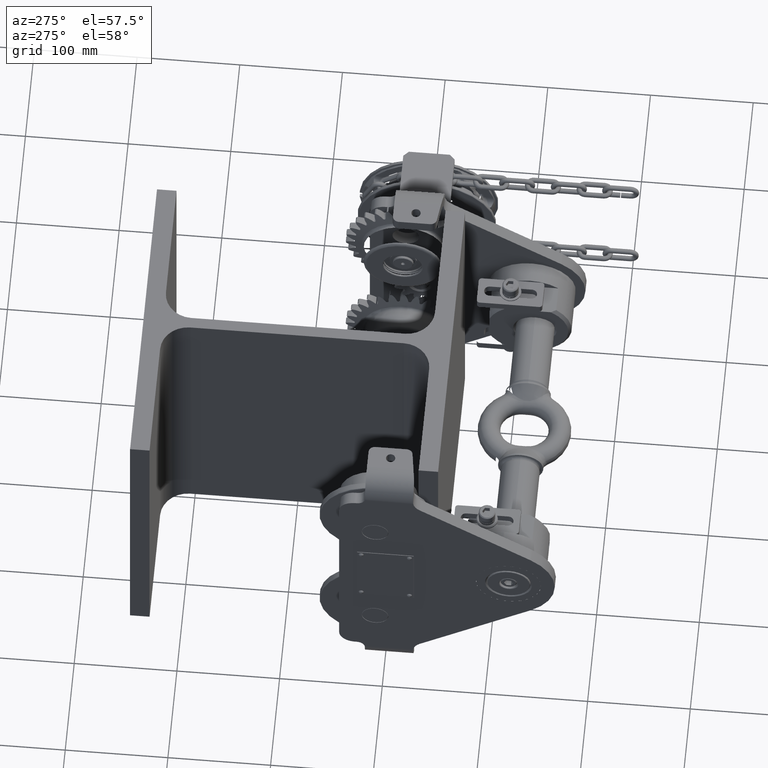
[diagram: clean part render]
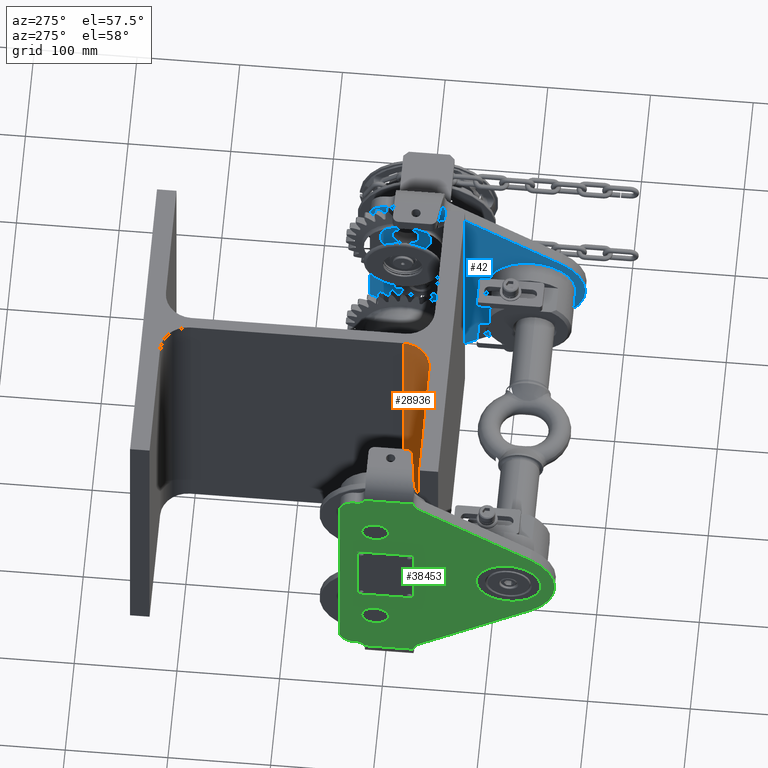
[diagram: same view with three faces highlighted in distinct colors, each labeled with its STEP entity id]
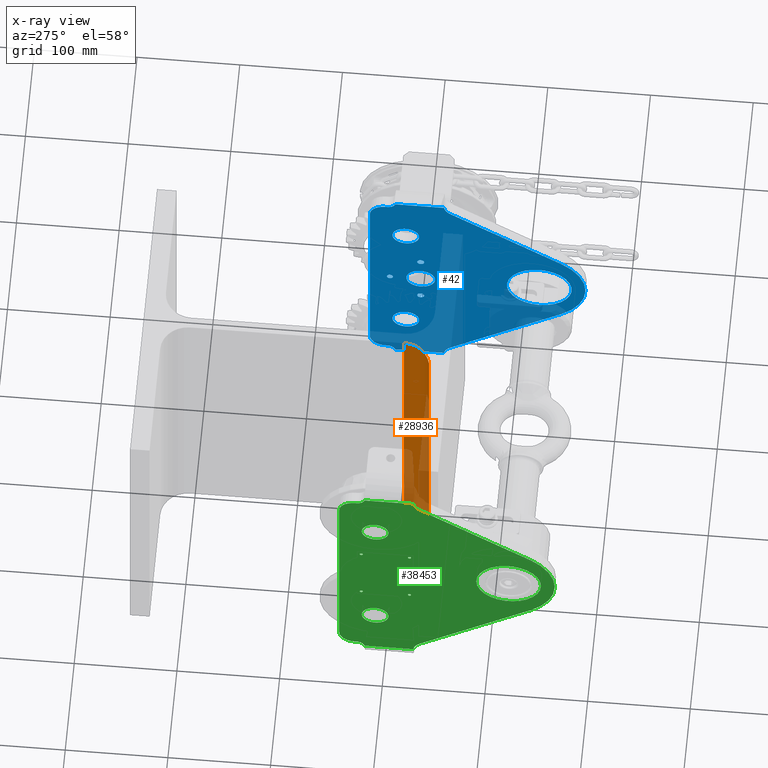
[diagram: x-ray of the same camera — body ghosted, the three highlighted faces saturated]
A machine part, auxiliary view with three faces highlighted in distinct colors.
The next image is the same camera in x-ray (body ghosted, the three faces saturated) — at least one of them is partly hidden behind the body in this view.
Their STEP definitions:

[orange] entity #28936 — the highlighted cylindrical surface (edge-blend (fillet) strip) has radius 27 mm, axis along (0, 0, 1).
#739 = DIRECTION ( 'NONE',  ( 0.0000000000000000000, 0.0000000000000000000, 1.000000000000000000 ) ) ;
#924 = CARTESIAN_POINT ( 'NONE',  ( -32.50000000000032700, -130.9999999999998000, 150.0000000000000000 ) ) ;
#1671 = DIRECTION ( 'NONE',  ( 1.000000000000000000, 0.0000000000000000000, 0.0000000000000000000 ) ) ;
#2458 = VERTEX_POINT ( 'NONE', #53831 ) ;
#4898 = CARTESIAN_POINT ( 'NONE',  ( -32.50000000000036900, -103.9999999999998200, -150.0000000000000000 ) ) ;
#5655 = CIRCLE ( 'NONE', #21361, 26.99999999999999600 ) ;
#7956 = VERTEX_POINT ( 'NONE', #924 ) ;
#13146 = DIRECTION ( 'NONE',  ( 1.000000000000000000, 0.0000000000000000000, 0.0000000000000000000 ) ) ;
#13888 = CARTESIAN_POINT ( 'NONE',  ( -32.50000000000036900, -103.9999999999998200, 150.0000000000000000 ) ) ;
#15463 = EDGE_CURVE ( 'NONE', #17059, #7956, #33084, .T. ) ;
#16266 = ORIENTED_EDGE ( 'NONE', *, *, #15463, .T. ) ;
#17059 = VERTEX_POINT ( 'NONE', #29821 ) ;
#17092 = EDGE_CURVE ( 'NONE', #31466, #2458, #30647, .T. ) ;
#17113 = CARTESIAN_POINT ( 'NONE',  ( -32.50000000000036900, -103.9999999999998200, -150.0000000000000000 ) ) ;
#20041 = AXIS2_PLACEMENT_3D ( 'NONE', #4898, #739, #1671 ) ;
#20381 = EDGE_CURVE ( 'NONE', #17059, #31466, #51820, .T. ) ;
#20429 = VECTOR ( 'NONE', #55833, 1000.000000000000000 ) ;
#21252 = ORIENTED_EDGE ( 'NONE', *, *, #20381, .F. ) ;
#21361 = AXIS2_PLACEMENT_3D ( 'NONE', #13888, #44228, #35911 ) ;
#23172 = AXIS2_PLACEMENT_3D ( 'NONE', #17113, #39144, #13146 ) ;
#24189 = ORIENTED_EDGE ( 'NONE', *, *, #46208, .T. ) ;
#28936 = ADVANCED_FACE ( 'NONE', ( #43342 ), #29117, .F. ) ;
#29117 = CYLINDRICAL_SURFACE ( 'NONE', #20041, 26.99999999999999600 ) ;
#29821 = CARTESIAN_POINT ( 'NONE',  ( -32.50000000000032700, -130.9999999999998000, -150.0000000000000000 ) ) ;
#30647 = LINE ( 'NONE', #33632, #20429 ) ;
#31466 = VERTEX_POINT ( 'NONE', #52041 ) ;
#33084 = LINE ( 'NONE', #51421, #47288 ) ;
#33632 = CARTESIAN_POINT ( 'NONE',  ( -5.500000000000373900, -103.9999999999998200, -150.0000000000000000 ) ) ;
#35911 = DIRECTION ( 'NONE',  ( 1.000000000000000000, 0.0000000000000000000, 0.0000000000000000000 ) ) ;
#36898 = ORIENTED_EDGE ( 'NONE', *, *, #17092, .F. ) ;
#39144 = DIRECTION ( 'NONE',  ( 0.0000000000000000000, 0.0000000000000000000, 1.000000000000000000 ) ) ;
#42812 = DIRECTION ( 'NONE',  ( 0.0000000000000000000, 0.0000000000000000000, 1.000000000000000000 ) ) ;
#43076 = EDGE_LOOP ( 'NONE', ( #24189, #36898, #21252, #16266 ) ) ;
#43342 = FACE_OUTER_BOUND ( 'NONE', #43076, .T. ) ;
#44228 = DIRECTION ( 'NONE',  ( 0.0000000000000000000, 0.0000000000000000000, 1.000000000000000000 ) ) ;
#46208 = EDGE_CURVE ( 'NONE', #7956, #2458, #5655, .T. ) ;
#47288 = VECTOR ( 'NONE', #42812, 1000.000000000000000 ) ;
#51421 = CARTESIAN_POINT ( 'NONE',  ( -32.50000000000032700, -130.9999999999998000, -150.0000000000000000 ) ) ;
#51820 = CIRCLE ( 'NONE', #23172, 26.99999999999999600 ) ;
#52041 = CARTESIAN_POINT ( 'NONE',  ( -5.500000000000373900, -103.9999999999998200, -150.0000000000000000 ) ) ;
#53831 = CARTESIAN_POINT ( 'NONE',  ( -5.500000000000373900, -103.9999999999998200, 150.0000000000000000 ) ) ;
#55833 = DIRECTION ( 'NONE',  ( 0.0000000000000000000, 0.0000000000000000000, 1.000000000000000000 ) ) ;

[blue] entity #42 — the highlighted planar face has unit normal (-1, 0, 0).
#42 = ADVANCED_FACE ( 'NONE', ( #11438, #1246, #31136, #4676, #46011, #44001, #51532, #12773 ), #7460, .T. ) ;
#85 = DIRECTION ( 'NONE',  ( 0.0000000000000000000, 0.0000000000000000000, 1.000000000000000000 ) ) ;
#361 = VERTEX_POINT ( 'NONE', #36037 ) ;
#622 = CARTESIAN_POINT ( 'NONE',  ( 165.0000000000005100, -105.5199999999999200, 14.00000000000002100 ) ) ;
#1098 = DIRECTION ( 'NONE',  ( 0.0000000000000000000, 0.0000000000000000000, 1.000000000000000000 ) ) ;
#1162 = VERTEX_POINT ( 'NONE', #2116 ) ;
#1246 = FACE_BOUND ( 'NONE', #42952, .T. ) ;
#1428 = DIRECTION ( 'NONE',  ( -1.000000000000000000, 7.520234006829985300E-017, 1.237788714659023200E-016 ) ) ;
#1590 = VECTOR ( 'NONE', #21750, 1000.000000000000000 ) ;
#1790 = VECTOR ( 'NONE', #14709, 1000.000000000000000 ) ;
#1958 = DIRECTION ( 'NONE',  ( 9.174201283909849900E-018, -0.8200253047337742200, 0.5723272661653303600 ) ) ;
#2043 = VERTEX_POINT ( 'NONE', #45473 ) ;
#2116 = CARTESIAN_POINT ( 'NONE',  ( 165.0000000000012200, -220.9999999999999100, 31.50000000000024200 ) ) ;
#2316 = CARTESIAN_POINT ( 'NONE',  ( 165.0000000000004800, -340.9435743119495900, 23.62152793321146400 ) ) ;
#2376 = AXIS2_PLACEMENT_3D ( 'NONE', #47441, #12909, #21806 ) ;
#2532 = CARTESIAN_POINT ( 'NONE',  ( 165.0000000000005100, -75.51999999999992500, -1.375993047711097100E-013 ) ) ;
#2695 = CARTESIAN_POINT ( 'NONE',  ( 165.0000000000012200, -210.9999999999999100, -2.126535289039365600E-013 ) ) ;
#2742 = CARTESIAN_POINT ( 'NONE',  ( 165.0000000000004800, -90.99999999999992900, 75.00000000000062500 ) ) ;
#3803 = AXIS2_PLACEMENT_3D ( 'NONE', #25598, #55830, #4542 ) ;
#4077 = EDGE_CURVE ( 'NONE', #17389, #47416, #36540, .T. ) ;
#4282 = ORIENTED_EDGE ( 'NONE', *, *, #55028, .T. ) ;
#4497 = ORIENTED_EDGE ( 'NONE', *, *, #28537, .F. ) ;
#4542 = DIRECTION ( 'NONE',  ( 0.0000000000000000000, 0.0000000000000000000, 1.000000000000000000 ) ) ;
#4676 = FACE_BOUND ( 'NONE', #14636, .T. ) ;
#4698 = VERTEX_POINT ( 'NONE', #29946 ) ;
#4856 = LINE ( 'NONE', #20708, #18992 ) ;
#4900 = EDGE_CURVE ( 'NONE', #29508, #50203, #21349, .T. ) ;
#4995 = ORIENTED_EDGE ( 'NONE', *, *, #40384, .F. ) ;
#5153 = LINE ( 'NONE', #5642, #1790 ) ;
#5467 = LINE ( 'NONE', #40689, #50301 ) ;
#5642 = CARTESIAN_POINT ( 'NONE',  ( 165.0000000000005100, -265.9999999999999400, 125.0000000000041100 ) ) ;
#6619 = DIRECTION ( 'NONE',  ( 0.0000000000000000000, 0.0000000000000000000, 1.000000000000000000 ) ) ;
#6978 = CARTESIAN_POINT ( 'NONE',  ( 165.0000000000005100, -72.99999999999982900, 133.0000000000014200 ) ) ;
#7123 = VERTEX_POINT ( 'NONE', #37444 ) ;
#7153 = EDGE_CURVE ( 'NONE', #46242, #34464, #4856, .T. ) ;
#7460 = PLANE ( 'NONE',  #39661 ) ;
#7472 = CIRCLE ( 'NONE', #26051, 14.00000000000016300 ) ;
#7500 = DIRECTION ( 'NONE',  ( 7.520234006829849700E-017, 1.000000000000000000, -1.033059776673966900E-031 ) ) ;
#7966 = EDGE_CURVE ( 'NONE', #56258, #56258, #7472, .T. ) ;
#8063 = CARTESIAN_POINT ( 'NONE',  ( 165.0000000000005100, -55.99999999999990100, 131.0000000000013900 ) ) ;
#8080 = CARTESIAN_POINT ( 'NONE',  ( 165.0000000000004800, -105.5199999999999200, -30.00000000000061800 ) ) ;
#8127 = CIRCLE ( 'NONE', #42220, 3.000000000000041300 ) ;
#8176 = CARTESIAN_POINT ( 'NONE',  ( 165.0000000000004800, -103.9999999999999100, -75.00000000000089500 ) ) ;
#8254 = CIRCLE ( 'NONE', #32037, 55.00000000000068200 ) ;
#8633 = VERTEX_POINT ( 'NONE', #21692 ) ;
#9189 = EDGE_CURVE ( 'NONE', #2043, #17973, #5153, .T. ) ;
#9200 = CARTESIAN_POINT ( 'NONE',  ( 165.0000000000004800, -72.99999999999982900, -125.0000000000016900 ) ) ;
#9258 = EDGE_CURVE ( 'NONE', #26634, #2043, #22710, .T. ) ;
#9650 = CARTESIAN_POINT ( 'NONE',  ( 165.0000000000006500, -127.9999999999998300, -155.0000000000016500 ) ) ;
#10165 = VERTEX_POINT ( 'NONE', #17447 ) ;
#11438 = FACE_BOUND ( 'NONE', #15910, .T. ) ;
#11961 = CARTESIAN_POINT ( 'NONE',  ( 165.0000000000004800, -105.5199999999999200, -26.60000000000058100 ) ) ;
#12094 = EDGE_CURVE ( 'NONE', #1162, #1162, #54151, .T. ) ;
#12156 = ORIENTED_EDGE ( 'NONE', *, *, #37319, .T. ) ;
#12387 = CARTESIAN_POINT ( 'NONE',  ( 165.0000000000005100, -265.9999999999998900, 131.0000000000013900 ) ) ;
#12773 = FACE_BOUND ( 'NONE', #45053, .T. ) ;
#12781 = CARTESIAN_POINT ( 'NONE',  ( 165.0000000000005100, -70.99999999999990100, 125.0000000000013900 ) ) ;
#12870 = CIRCLE ( 'NONE', #17445, 3.400000000000035000 ) ;
#12909 = DIRECTION ( 'NONE',  ( 1.000000000000000000, -7.520234006829985300E-017, -1.237788714659023200E-016 ) ) ;
#13631 = CARTESIAN_POINT ( 'NONE',  ( 165.0000000000004800, -265.9999999999998900, 131.0000000000013900 ) ) ;
#13804 = VECTOR ( 'NONE', #29870, 1000.000000000000000 ) ;
#13989 = VERTEX_POINT ( 'NONE', #41550 ) ;
#14365 = ORIENTED_EDGE ( 'NONE', *, *, #9258, .T. ) ;
#14450 = LINE ( 'NONE', #9650, #1590 ) ;
#14509 = DIRECTION ( 'NONE',  ( 1.000000000000000000, -7.520234006829985300E-017, -1.237788714659023200E-016 ) ) ;
#14636 = EDGE_LOOP ( 'NONE', ( #19478 ) ) ;
#14709 = DIRECTION ( 'NONE',  ( 7.520234006829678400E-017, 1.000000000000000000, -1.387778780781508800E-014 ) ) ;
#14893 = DIRECTION ( 'NONE',  ( 0.0000000000000000000, 1.850371707708572300E-015, 1.000000000000000000 ) ) ;
#15133 = ORIENTED_EDGE ( 'NONE', *, *, #24783, .F. ) ;
#15856 = DIRECTION ( 'NONE',  ( -7.520234006830021000E-017, -1.000000000000000000, -1.387778780781508800E-014 ) ) ;
#15910 = EDGE_LOOP ( 'NONE', ( #4995 ) ) ;
#16593 = LINE ( 'NONE', #42393, #54663 ) ;
#17389 = VERTEX_POINT ( 'NONE', #38661 ) ;
#17445 = AXIS2_PLACEMENT_3D ( 'NONE', #8080, #51364, #85 ) ;
#17447 = CARTESIAN_POINT ( 'NONE',  ( 165.0000000000004800, -55.99999999999990100, -110.0000000000016500 ) ) ;
#17973 = VERTEX_POINT ( 'NONE', #12781 ) ;
#18160 = DIRECTION ( 'NONE',  ( 1.000000000000000000, -7.520234006829985300E-017, -1.237788714659023200E-016 ) ) ;
#18259 = DIRECTION ( 'NONE',  ( 0.0000000000000000000, 0.0000000000000000000, 1.000000000000000000 ) ) ;
#18449 = CARTESIAN_POINT ( 'NONE',  ( 165.0000000000006500, -127.9999999999998300, -131.0000000000016500 ) ) ;
#18992 = VECTOR ( 'NONE', #7500, 1000.000000000000000 ) ;
#19231 = EDGE_CURVE ( 'NONE', #29581, #29508, #16593, .T. ) ;
#19478 = ORIENTED_EDGE ( 'NONE', *, *, #23754, .T. ) ;
#20365 = VERTEX_POINT ( 'NONE', #9200 ) ;
#20708 = CARTESIAN_POINT ( 'NONE',  ( 165.0000000000004500, -265.9999999999998900, -131.0000000000016800 ) ) ;
#21072 = ORIENTED_EDGE ( 'NONE', *, *, #44290, .F. ) ;
#21241 = EDGE_CURVE ( 'NONE', #8633, #50203, #5467, .T. ) ;
#21290 = DIRECTION ( 'NONE',  ( 0.0000000000000000000, 0.0000000000000000000, 1.000000000000000000 ) ) ;
#21349 = CIRCLE ( 'NONE', #36678, 15.00000000000017900 ) ;
#21692 = CARTESIAN_POINT ( 'NONE',  ( 165.0000000000006500, -127.9999999999998300, 131.0000000000013900 ) ) ;
#21750 = DIRECTION ( 'NONE',  ( 4.633115819864183400E-018, -1.074805461398712200E-031, 1.000000000000000000 ) ) ;
#21806 = DIRECTION ( 'NONE',  ( 0.0000000000000000000, 5.551115123125710900E-015, 1.000000000000000000 ) ) ;
#21956 = EDGE_LOOP ( 'NONE', ( #51724 ) ) ;
#22106 = EDGE_LOOP ( 'NONE', ( #15133 ) ) ;
#22202 = CARTESIAN_POINT ( 'NONE',  ( 165.0000000000005100, -55.99999999999990100, 110.0000000000014100 ) ) ;
#22602 = DIRECTION ( 'NONE',  ( 0.0000000000000000000, 0.0000000000000000000, 1.000000000000000000 ) ) ;
#22710 = CIRCLE ( 'NONE', #33416, 8.000000000000090600 ) ;
#23125 = CARTESIAN_POINT ( 'NONE',  ( 165.0000000000004800, -80.74596669241464000, -131.0000000000016800 ) ) ;
#23487 = EDGE_CURVE ( 'NONE', #20365, #34464, #43412, .T. ) ;
#23610 = VECTOR ( 'NONE', #1958, 999.9999999999998900 ) ;
#23742 = ORIENTED_EDGE ( 'NONE', *, *, #29355, .F. ) ;
#23754 = EDGE_CURVE ( 'NONE', #35086, #35086, #8127, .T. ) ;
#24202 = AXIS2_PLACEMENT_3D ( 'NONE', #2742, #41612, #50193 ) ;
#24634 = ORIENTED_EDGE ( 'NONE', *, *, #51549, .T. ) ;
#24739 = VECTOR ( 'NONE', #34890, 1000.000000000000000 ) ;
#24783 = EDGE_CURVE ( 'NONE', #13989, #13989, #29674, .T. ) ;
#25067 = EDGE_LOOP ( 'NONE', ( #23742 ) ) ;
#25388 = DIRECTION ( 'NONE',  ( -1.000000000000000000, 7.520234006829985300E-017, 4.633115819862199000E-018 ) ) ;
#25598 = CARTESIAN_POINT ( 'NONE',  ( 165.0000000000005100, -105.5199999999999200, 30.00000000000014600 ) ) ;
#25640 = EDGE_CURVE ( 'NONE', #8633, #26634, #32955, .T. ) ;
#26051 = AXIS2_PLACEMENT_3D ( 'NONE', #53693, #18160, #1098 ) ;
#26064 = DIRECTION ( 'NONE',  ( 1.000000000000000000, -7.520234006829985300E-017, -1.237788714659023200E-016 ) ) ;
#26634 = VERTEX_POINT ( 'NONE', #31080 ) ;
#26700 = EDGE_CURVE ( 'NONE', #7123, #46242, #14450, .T. ) ;
#26923 = ORIENTED_EDGE ( 'NONE', *, *, #7153, .F. ) ;
#26978 = AXIS2_PLACEMENT_3D ( 'NONE', #38204, #42741, #21290 ) ;
#27688 = AXIS2_PLACEMENT_3D ( 'NONE', #51429, #25388, #55804 ) ;
#28537 = EDGE_CURVE ( 'NONE', #54134, #54134, #12870, .T. ) ;
#28595 = ORIENTED_EDGE ( 'NONE', *, *, #25640, .T. ) ;
#28622 = CIRCLE ( 'NONE', #3803, 3.400000000000035000 ) ;
#29355 = EDGE_CURVE ( 'NONE', #36396, #36396, #37877, .T. ) ;
#29508 = VERTEX_POINT ( 'NONE', #44304 ) ;
#29581 = VERTEX_POINT ( 'NONE', #44495 ) ;
#29674 = CIRCLE ( 'NONE', #24202, 12.99999999999999800 ) ;
#29746 = AXIS2_PLACEMENT_3D ( 'NONE', #53060, #39700, #18259 ) ;
#29870 = DIRECTION ( 'NONE',  ( 1.237788714659011200E-016, -1.164405857736590600E-031, 1.000000000000000000 ) ) ;
#29946 = CARTESIAN_POINT ( 'NONE',  ( 165.0000000000004800, -70.99999999999990100, -125.0000000000016600 ) ) ;
#30593 = EDGE_CURVE ( 'NONE', #7123, #17389, #47897, .T. ) ;
#30670 = DIRECTION ( 'NONE',  ( 4.633115819864183400E-018, -1.074805461398712200E-031, 1.000000000000000000 ) ) ;
#31080 = CARTESIAN_POINT ( 'NONE',  ( 165.0000000000005100, -80.74596669241464000, 131.0000000000013900 ) ) ;
#31136 = FACE_BOUND ( 'NONE', #21956, .T. ) ;
#31973 = CARTESIAN_POINT ( 'NONE',  ( 165.0000000000004800, -70.99999999999990100, -110.0000000000016600 ) ) ;
#32037 = AXIS2_PLACEMENT_3D ( 'NONE', #2695, #41739, #50899 ) ;
#32060 = ORIENTED_EDGE ( 'NONE', *, *, #4077, .T. ) ;
#32274 = CIRCLE ( 'NONE', #29746, 15.00000000000019400 ) ;
#32588 = DIRECTION ( 'NONE',  ( 1.000000000000000000, -7.520234006829985300E-017, -1.237788714659023200E-016 ) ) ;
#32752 = ORIENTED_EDGE ( 'NONE', *, *, #19231, .T. ) ;
#32955 = LINE ( 'NONE', #13631, #24739 ) ;
#33416 = AXIS2_PLACEMENT_3D ( 'NONE', #6978, #32588, #6619 ) ;
#34464 = VERTEX_POINT ( 'NONE', #23125 ) ;
#34547 = VECTOR ( 'NONE', #15856, 1000.000000000000000 ) ;
#34890 = DIRECTION ( 'NONE',  ( 7.520234006829849700E-017, 1.000000000000000000, -1.033059776673966900E-031 ) ) ;
#35086 = VERTEX_POINT ( 'NONE', #41901 ) ;
#36037 = CARTESIAN_POINT ( 'NONE',  ( 165.0000000000005100, -105.5199999999999200, 33.40000000000017600 ) ) ;
#36164 = CARTESIAN_POINT ( 'NONE',  ( 165.0000000000005100, -142.9999999999998600, 132.8230403019135200 ) ) ;
#36396 = VERTEX_POINT ( 'NONE', #8176 ) ;
#36540 = LINE ( 'NONE', #2316, #23610 ) ;
#36678 = AXIS2_PLACEMENT_3D ( 'NONE', #36164, #14509, #14893 ) ;
#36701 = DIRECTION ( 'NONE',  ( 0.0000000000000000000, 0.0000000000000000000, 1.000000000000000000 ) ) ;
#37319 = EDGE_CURVE ( 'NONE', #4698, #20365, #46039, .T. ) ;
#37444 = CARTESIAN_POINT ( 'NONE',  ( 165.0000000000006500, -127.9999999999998900, -132.8230403019138400 ) ) ;
#37681 = DIRECTION ( 'NONE',  ( 1.325098449463085100E-016, 0.8200253047337737700, 0.5723272661653309200 ) ) ;
#37877 = CIRCLE ( 'NONE', #27688, 12.99999999999999800 ) ;
#38204 = CARTESIAN_POINT ( 'NONE',  ( 165.0000000000012200, -220.9999999999999100, -1.408519666696450500E-013 ) ) ;
#38661 = CARTESIAN_POINT ( 'NONE',  ( 165.0000000000004800, -134.4150910075199800, -120.5226607309071800 ) ) ;
#38892 = ORIENTED_EDGE ( 'NONE', *, *, #21241, .F. ) ;
#39661 = AXIS2_PLACEMENT_3D ( 'NONE', #12387, #42732, #47093 ) ;
#39700 = DIRECTION ( 'NONE',  ( -1.000000000000000000, 7.520234006829985300E-017, 1.237788714659023200E-016 ) ) ;
#40380 = AXIS2_PLACEMENT_3D ( 'NONE', #48282, #26064, #22602 ) ;
#40384 = EDGE_CURVE ( 'NONE', #361, #361, #28622, .T. ) ;
#40689 = CARTESIAN_POINT ( 'NONE',  ( 165.0000000000006500, -127.9999999999998300, -155.0000000000016500 ) ) ;
#41376 = ORIENTED_EDGE ( 'NONE', *, *, #43439, .T. ) ;
#41550 = CARTESIAN_POINT ( 'NONE',  ( 165.0000000000004800, -103.9999999999999300, 75.00000000000062500 ) ) ;
#41612 = DIRECTION ( 'NONE',  ( -1.000000000000000000, 7.520234006829985300E-017, 4.633115819862199000E-018 ) ) ;
#41739 = DIRECTION ( 'NONE',  ( -1.000000000000000000, 7.520234006829985300E-017, 1.237788714659023200E-016 ) ) ;
#41758 = DIRECTION ( 'NONE',  ( 0.0000000000000000000, 0.0000000000000000000, 1.000000000000000000 ) ) ;
#41901 = CARTESIAN_POINT ( 'NONE',  ( 165.0000000000005100, -75.51999999999992500, 2.999999999999903600 ) ) ;
#42220 = AXIS2_PLACEMENT_3D ( 'NONE', #2532, #49979, #41758 ) ;
#42393 = CARTESIAN_POINT ( 'NONE',  ( 165.0000000000012200, -217.9809900106456300, 62.19879896101364400 ) ) ;
#42732 = DIRECTION ( 'NONE',  ( -1.000000000000000000, 7.520234006829986500E-017, 1.237788714659011200E-016 ) ) ;
#42741 = DIRECTION ( 'NONE',  ( 1.000000000000000000, -7.520234006829985300E-017, -1.237788714659023200E-016 ) ) ;
#42870 = ORIENTED_EDGE ( 'NONE', *, *, #12094, .T. ) ;
#42952 = EDGE_LOOP ( 'NONE', ( #4497 ) ) ;
#43412 = CIRCLE ( 'NONE', #40380, 8.000000000000090600 ) ;
#43439 = EDGE_CURVE ( 'NONE', #17973, #52031, #32274, .T. ) ;
#44001 = FACE_BOUND ( 'NONE', #22106, .T. ) ;
#44283 = ORIENTED_EDGE ( 'NONE', *, *, #26700, .F. ) ;
#44290 = EDGE_CURVE ( 'NONE', #10165, #52031, #45682, .T. ) ;
#44304 = CARTESIAN_POINT ( 'NONE',  ( 165.0000000000005100, -134.4150910075199800, 120.5226607309068500 ) ) ;
#44495 = CARTESIAN_POINT ( 'NONE',  ( 165.0000000000012500, -242.4779996390927300, 45.10139176035798400 ) ) ;
#45053 = EDGE_LOOP ( 'NONE', ( #42870 ) ) ;
#45473 = CARTESIAN_POINT ( 'NONE',  ( 165.0000000000005100, -72.99999999999982900, 125.0000000000014500 ) ) ;
#45682 = LINE ( 'NONE', #8063, #13804 ) ;
#45888 = ORIENTED_EDGE ( 'NONE', *, *, #4900, .T. ) ;
#46011 = FACE_OUTER_BOUND ( 'NONE', #47743, .T. ) ;
#46039 = LINE ( 'NONE', #55565, #34547 ) ;
#46242 = VERTEX_POINT ( 'NONE', #18449 ) ;
#47093 = DIRECTION ( 'NONE',  ( 1.237788714659011200E-016, -1.164405857736590600E-031, 1.000000000000000000 ) ) ;
#47416 = VERTEX_POINT ( 'NONE', #55954 ) ;
#47441 = CARTESIAN_POINT ( 'NONE',  ( 165.0000000000004800, -142.9999999999999100, -132.8230403019138400 ) ) ;
#47743 = EDGE_LOOP ( 'NONE', ( #26923, #44283, #52229, #32060, #4282, #32752, #45888, #38892, #28595, #14365, #53792, #41376, #21072, #24634, #12156, #47888 ) ) ;
#47888 = ORIENTED_EDGE ( 'NONE', *, *, #23487, .T. ) ;
#47897 = CIRCLE ( 'NONE', #2376, 15.00000000000019400 ) ;
#48282 = CARTESIAN_POINT ( 'NONE',  ( 165.0000000000004800, -72.99999999999982900, -133.0000000000017100 ) ) ;
#49209 = CARTESIAN_POINT ( 'NONE',  ( 165.0000000000006500, -127.9999999999998300, 132.8230403019135200 ) ) ;
#49979 = DIRECTION ( 'NONE',  ( 1.000000000000000000, -7.520234006829985300E-017, -1.237788714659023200E-016 ) ) ;
#50193 = DIRECTION ( 'NONE',  ( 0.0000000000000000000, -1.000000000000000000, 0.0000000000000000000 ) ) ;
#50203 = VERTEX_POINT ( 'NONE', #49209 ) ;
#50301 = VECTOR ( 'NONE', #30670, 1000.000000000000000 ) ;
#50899 = DIRECTION ( 'NONE',  ( 0.0000000000000000000, 0.0000000000000000000, 1.000000000000000000 ) ) ;
#51364 = DIRECTION ( 'NONE',  ( -1.000000000000000000, 7.520234006829985300E-017, 1.237788714659023200E-016 ) ) ;
#51429 = CARTESIAN_POINT ( 'NONE',  ( 165.0000000000004800, -90.99999999999991500, -75.00000000000089500 ) ) ;
#51532 = FACE_BOUND ( 'NONE', #25067, .T. ) ;
#51549 = EDGE_CURVE ( 'NONE', #10165, #4698, #54536, .T. ) ;
#51724 = ORIENTED_EDGE ( 'NONE', *, *, #7966, .T. ) ;
#52031 = VERTEX_POINT ( 'NONE', #22202 ) ;
#52229 = ORIENTED_EDGE ( 'NONE', *, *, #30593, .T. ) ;
#52604 = AXIS2_PLACEMENT_3D ( 'NONE', #31973, #1428, #36701 ) ;
#53060 = CARTESIAN_POINT ( 'NONE',  ( 165.0000000000005100, -70.99999999999990100, 110.0000000000013900 ) ) ;
#53693 = CARTESIAN_POINT ( 'NONE',  ( 165.0000000000005100, -105.5199999999999200, -1.415433567511412300E-013 ) ) ;
#53792 = ORIENTED_EDGE ( 'NONE', *, *, #9189, .T. ) ;
#54134 = VERTEX_POINT ( 'NONE', #11961 ) ;
#54151 = CIRCLE ( 'NONE', #26978, 31.50000000000038000 ) ;
#54536 = CIRCLE ( 'NONE', #52604, 15.00000000000017900 ) ;
#54663 = VECTOR ( 'NONE', #37681, 1000.000000000000000 ) ;
#55028 = EDGE_CURVE ( 'NONE', #47416, #29581, #8254, .T. ) ;
#55565 = CARTESIAN_POINT ( 'NONE',  ( 165.0000000000004500, -265.9999999999963600, -125.0000000000043900 ) ) ;
#55804 = DIRECTION ( 'NONE',  ( 0.0000000000000000000, -1.000000000000000000, 0.0000000000000000000 ) ) ;
#55830 = DIRECTION ( 'NONE',  ( -1.000000000000000000, 7.520234006829985300E-017, 1.237788714659023200E-016 ) ) ;
#55954 = CARTESIAN_POINT ( 'NONE',  ( 165.0000000000004800, -242.4779996390927300, -45.10139176035840300 ) ) ;
#56258 = VERTEX_POINT ( 'NONE', #622 ) ;

[green] entity #38453 — the highlighted planar face has unit normal (-1, 0, 0).
#992 = DIRECTION ( 'NONE',  ( 0.0000000000000000000, 1.000000000000000000, 0.0000000000000000000 ) ) ;
#1118 = EDGE_CURVE ( 'NONE', #45873, #5440, #43148, .T. ) ;
#1568 = CIRCLE ( 'NONE', #43819, 54.99999999999999300 ) ;
#1819 = VECTOR ( 'NONE', #51646, 1000.000000000000000 ) ;
#2016 = CIRCLE ( 'NONE', #44140, 7.999999999999979600 ) ;
#2726 = ORIENTED_EDGE ( 'NONE', *, *, #13810, .T. ) ;
#2949 = VERTEX_POINT ( 'NONE', #20490 ) ;
#3018 = EDGE_CURVE ( 'NONE', #4596, #4596, #8319, .T. ) ;
#3387 = DIRECTION ( 'NONE',  ( 0.0000000000000000000, 1.000000000000000000, 0.0000000000000000000 ) ) ;
#3701 = EDGE_CURVE ( 'NONE', #7353, #7353, #52996, .T. ) ;
#3975 = DIRECTION ( 'NONE',  ( -1.000000000000000000, 5.141320619052711900E-017, 5.173860848184563200E-017 ) ) ;
#4596 = VERTEX_POINT ( 'NONE', #53212 ) ;
#4760 = AXIS2_PLACEMENT_3D ( 'NONE', #9401, #39708, #17511 ) ;
#4776 = CARTESIAN_POINT ( 'NONE',  ( -177.0000000000000000, -128.1111946732583800, -131.0000000000019900 ) ) ;
#4971 = DIRECTION ( 'NONE',  ( 0.0000000000000000000, 1.000000000000000000, 0.0000000000000000000 ) ) ;
#5257 = VERTEX_POINT ( 'NONE', #36639 ) ;
#5440 = VERTEX_POINT ( 'NONE', #10133 ) ;
#5709 = LINE ( 'NONE', #45958, #26717 ) ;
#5776 = ORIENTED_EDGE ( 'NONE', *, *, #44630, .T. ) ;
#5826 = FACE_BOUND ( 'NONE', #35848, .T. ) ;
#6457 = EDGE_CURVE ( 'NONE', #5440, #8659, #21203, .T. ) ;
#6579 = DIRECTION ( 'NONE',  ( -1.000000000000000000, 5.141320619052711900E-017, 5.173860848184563200E-017 ) ) ;
#6644 = CARTESIAN_POINT ( 'NONE',  ( -177.0000000000000000, -134.4150910075199800, -120.5226607309074600 ) ) ;
#6884 = CARTESIAN_POINT ( 'NONE',  ( -177.0000000000000000, -75.99999999999994300, -33.50000000000037700 ) ) ;
#7256 = CARTESIAN_POINT ( 'NONE',  ( -177.0000000000000000, -72.99999999999984400, -125.0000000000020600 ) ) ;
#7330 = AXIS2_PLACEMENT_3D ( 'NONE', #15798, #41608, #28540 ) ;
#7345 = EDGE_LOOP ( 'NONE', ( #49000 ) ) ;
#7353 = VERTEX_POINT ( 'NONE', #22934 ) ;
#7659 = LINE ( 'NONE', #49394, #53141 ) ;
#8128 = CIRCLE ( 'NONE', #51933, 1.499999999999987600 ) ;
#8319 = CIRCLE ( 'NONE', #8965, 31.50000000000000000 ) ;
#8659 = VERTEX_POINT ( 'NONE', #30837 ) ;
#8805 = DIRECTION ( 'NONE',  ( 1.000000000000000000, -5.141320619052711900E-017, -5.173860848184563200E-017 ) ) ;
#8965 = AXIS2_PLACEMENT_3D ( 'NONE', #21799, #16873, #56228 ) ;
#8977 = VECTOR ( 'NONE', #54923, 1000.000000000000000 ) ;
#9356 = DIRECTION ( 'NONE',  ( 0.0000000000000000000, -1.000000000000000000, 0.0000000000000000000 ) ) ;
#9365 = AXIS2_PLACEMENT_3D ( 'NONE', #41680, #11914, #3387 ) ;
#9401 = CARTESIAN_POINT ( 'NONE',  ( -177.0000000000000000, -77.49999999999992900, -33.50000000000037700 ) ) ;
#9713 = CARTESIAN_POINT ( 'NONE',  ( -177.0000000000000000, -55.99999999999990100, 110.0000000000017300 ) ) ;
#10133 = CARTESIAN_POINT ( 'NONE',  ( -177.0000000000000000, -134.4150910075199800, 120.5226607309072300 ) ) ;
#10172 = DIRECTION ( 'NONE',  ( 0.0000000000000000000, 1.000000000000000000, 0.0000000000000000000 ) ) ;
#11328 = VERTEX_POINT ( 'NONE', #17830 ) ;
#11508 = DIRECTION ( 'NONE',  ( 0.0000000000000000000, 1.000000000000000000, 0.0000000000000000000 ) ) ;
#11901 = VERTEX_POINT ( 'NONE', #31669 ) ;
#11914 = DIRECTION ( 'NONE',  ( -1.000000000000000000, 5.141320619052711900E-017, 5.173860848184563200E-017 ) ) ;
#12193 = CARTESIAN_POINT ( 'NONE',  ( -177.0000000000000000, -210.9999999999999100, -6.895071741197847000E-014 ) ) ;
#12678 = CARTESIAN_POINT ( 'NONE',  ( -177.0000000000009100, -265.9999999999998900, -131.0000000000019900 ) ) ;
#12719 = ORIENTED_EDGE ( 'NONE', *, *, #28678, .F. ) ;
#12921 = EDGE_CURVE ( 'NONE', #33608, #18323, #48520, .T. ) ;
#13810 = EDGE_CURVE ( 'NONE', #15598, #45873, #1568, .T. ) ;
#13912 = VERTEX_POINT ( 'NONE', #4776 ) ;
#13955 = FACE_BOUND ( 'NONE', #36679, .T. ) ;
#14002 = ORIENTED_EDGE ( 'NONE', *, *, #55041, .T. ) ;
#14048 = DIRECTION ( 'NONE',  ( 1.000000000000000000, -5.141320619052711900E-017, -5.173860848184563200E-017 ) ) ;
#14991 = ORIENTED_EDGE ( 'NONE', *, *, #42625, .T. ) ;
#15411 = CIRCLE ( 'NONE', #50856, 14.99999999999998600 ) ;
#15598 = VERTEX_POINT ( 'NONE', #48533 ) ;
#15798 = CARTESIAN_POINT ( 'NONE',  ( -177.0000000000000000, -265.9999999999998900, 131.0000000000017100 ) ) ;
#15847 = CARTESIAN_POINT ( 'NONE',  ( -177.0000000000000000, -142.9999999999999100, 132.8230403019138900 ) ) ;
#15915 = ORIENTED_EDGE ( 'NONE', *, *, #35737, .T. ) ;
#16077 = DIRECTION ( 'NONE',  ( 1.000000000000000000, -5.141320619052711900E-017, -5.173860848184563200E-017 ) ) ;
#16267 = CARTESIAN_POINT ( 'NONE',  ( -177.0000000000009100, -142.9999999999998600, -132.8230403019141500 ) ) ;
#16873 = DIRECTION ( 'NONE',  ( -1.000000000000000000, 5.141320619052711900E-017, 5.173860848184563200E-017 ) ) ;
#17318 = VERTEX_POINT ( 'NONE', #17602 ) ;
#17511 = DIRECTION ( 'NONE',  ( 0.0000000000000000000, 1.000000000000000000, 0.0000000000000000000 ) ) ;
#17602 = CARTESIAN_POINT ( 'NONE',  ( -177.0000000000000000, -122.9999999999999400, 33.50000000000055400 ) ) ;
#17830 = CARTESIAN_POINT ( 'NONE',  ( -177.0000000000000000, -70.99999999999990100, -125.0000000000019800 ) ) ;
#18323 = VERTEX_POINT ( 'NONE', #9713 ) ;
#18398 = ORIENTED_EDGE ( 'NONE', *, *, #41069, .T. ) ;
#18486 = CARTESIAN_POINT ( 'NONE',  ( -177.0000000000000000, -80.74596669241465500, -131.0000000000019900 ) ) ;
#18667 = CARTESIAN_POINT ( 'NONE',  ( -177.0000000000000000, -242.4779996390927300, 45.10139176035843900 ) ) ;
#18744 = EDGE_CURVE ( 'NONE', #13912, #34605, #37885, .T. ) ;
#18791 = EDGE_LOOP ( 'NONE', ( #19272 ) ) ;
#19110 = CIRCLE ( 'NONE', #46306, 12.99999999999999800 ) ;
#19272 = ORIENTED_EDGE ( 'NONE', *, *, #38871, .F. ) ;
#19545 = ORIENTED_EDGE ( 'NONE', *, *, #3018, .F. ) ;
#19565 = EDGE_CURVE ( 'NONE', #5257, #5257, #34214, .T. ) ;
#19653 = DIRECTION ( 'NONE',  ( 1.000000000000000000, -5.141320619052711900E-017, -5.173860848184563200E-017 ) ) ;
#20255 = ORIENTED_EDGE ( 'NONE', *, *, #36241, .F. ) ;
#20490 = CARTESIAN_POINT ( 'NONE',  ( -177.0000000000000000, -80.74596669241462600, 131.0000000000017100 ) ) ;
#20826 = DIRECTION ( 'NONE',  ( 5.141320619052708200E-017, 1.000000000000000000, 1.939585182381060700E-034 ) ) ;
#21203 = CIRCLE ( 'NONE', #46986, 15.00000000000001400 ) ;
#21210 = CIRCLE ( 'NONE', #24143, 7.999999999999979600 ) ;
#21590 = CARTESIAN_POINT ( 'NONE',  ( -177.0000000000000000, -134.4150910075199800, 120.5226607309072300 ) ) ;
#21607 = ORIENTED_EDGE ( 'NONE', *, *, #12921, .T. ) ;
#21663 = ORIENTED_EDGE ( 'NONE', *, *, #45937, .T. ) ;
#21784 = VERTEX_POINT ( 'NONE', #48811 ) ;
#21799 = CARTESIAN_POINT ( 'NONE',  ( -177.0000000000000000, -220.9999999999999100, -1.407522796462694700E-013 ) ) ;
#22098 = VERTEX_POINT ( 'NONE', #6884 ) ;
#22934 = CARTESIAN_POINT ( 'NONE',  ( -177.0000000000000000, -122.9999999999999400, -33.50000000000037700 ) ) ;
#22994 = PLANE ( 'NONE',  #7330 ) ;
#23003 = VECTOR ( 'NONE', #38430, 1000.000000000000000 ) ;
#23070 = EDGE_LOOP ( 'NONE', ( #14002, #21607, #52083, #21663, #31647, #18398, #36298, #14991, #5776, #2726, #35960, #34688, #39124, #15915 ) ) ;
#23602 = VECTOR ( 'NONE', #20826, 1000.000000000000000 ) ;
#23627 = ORIENTED_EDGE ( 'NONE', *, *, #3701, .F. ) ;
#24143 = AXIS2_PLACEMENT_3D ( 'NONE', #48825, #14048, #992 ) ;
#25154 = AXIS2_PLACEMENT_3D ( 'NONE', #54115, #45321, #54296 ) ;
#25335 = CARTESIAN_POINT ( 'NONE',  ( -177.0000000000000000, -265.9999999999998900, 131.0000000000017100 ) ) ;
#25782 = CARTESIAN_POINT ( 'NONE',  ( -177.0000000000000000, -77.99999999999994300, -75.00000000000106600 ) ) ;
#26288 = EDGE_LOOP ( 'NONE', ( #20255 ) ) ;
#26594 = CARTESIAN_POINT ( 'NONE',  ( -177.0000000000000000, -124.4999999999999300, 33.50000000000055400 ) ) ;
#26717 = VECTOR ( 'NONE', #36531, 1000.000000000000000 ) ;
#27761 = DIRECTION ( 'NONE',  ( -1.000000000000000000, 5.141320619052711900E-017, 5.173860848184563200E-017 ) ) ;
#28540 = DIRECTION ( 'NONE',  ( 5.141320619052708200E-017, 1.000000000000000000, 1.939585182381060700E-034 ) ) ;
#28678 = EDGE_CURVE ( 'NONE', #22098, #22098, #29174, .T. ) ;
#29174 = CIRCLE ( 'NONE', #4760, 1.499999999999987600 ) ;
#30261 = FACE_BOUND ( 'NONE', #26288, .T. ) ;
#30742 = ORIENTED_EDGE ( 'NONE', *, *, #19565, .F. ) ;
#30837 = CARTESIAN_POINT ( 'NONE',  ( -177.0000000000000000, -128.1111946732584400, 131.0000000000017100 ) ) ;
#31647 = ORIENTED_EDGE ( 'NONE', *, *, #32525, .T. ) ;
#31669 = CARTESIAN_POINT ( 'NONE',  ( -177.0000000000000000, -75.99999999999994300, 33.50000000000055400 ) ) ;
#31743 = DIRECTION ( 'NONE',  ( 0.0000000000000000000, -1.000000000000000000, 0.0000000000000000000 ) ) ;
#31798 = AXIS2_PLACEMENT_3D ( 'NONE', #44611, #27761, #31743 ) ;
#32525 = EDGE_CURVE ( 'NONE', #11328, #36121, #5709, .T. ) ;
#32542 = CARTESIAN_POINT ( 'NONE',  ( -177.0000000000000000, -77.49999999999992900, 33.50000000000055400 ) ) ;
#32824 = AXIS2_PLACEMENT_3D ( 'NONE', #26594, #44568, #4971 ) ;
#33073 = EDGE_LOOP ( 'NONE', ( #30742 ) ) ;
#33260 = CARTESIAN_POINT ( 'NONE',  ( -177.0000000000000000, -70.99999999999990100, 125.0000000000017200 ) ) ;
#33608 = VERTEX_POINT ( 'NONE', #48163 ) ;
#33926 = LINE ( 'NONE', #46324, #49549 ) ;
#34057 = LINE ( 'NONE', #33260, #8977 ) ;
#34164 = DIRECTION ( 'NONE',  ( 0.0000000000000000000, 1.000000000000000000, 0.0000000000000000000 ) ) ;
#34214 = CIRCLE ( 'NONE', #25154, 12.99999999999999800 ) ;
#34355 = FACE_BOUND ( 'NONE', #47228, .T. ) ;
#34605 = VERTEX_POINT ( 'NONE', #18486 ) ;
#34688 = ORIENTED_EDGE ( 'NONE', *, *, #6457, .T. ) ;
#34773 = CARTESIAN_POINT ( 'NONE',  ( -177.0000000000000000, -72.99999999999984400, -133.0000000000020500 ) ) ;
#35737 = EDGE_CURVE ( 'NONE', #2949, #47281, #21210, .T. ) ;
#35848 = EDGE_LOOP ( 'NONE', ( #12719 ) ) ;
#35960 = ORIENTED_EDGE ( 'NONE', *, *, #1118, .T. ) ;
#36121 = VERTEX_POINT ( 'NONE', #7256 ) ;
#36241 = EDGE_CURVE ( 'NONE', #41102, #41102, #19110, .T. ) ;
#36298 = ORIENTED_EDGE ( 'NONE', *, *, #18744, .F. ) ;
#36531 = DIRECTION ( 'NONE',  ( -5.141320619052780300E-017, -1.000000000000000000, -1.387778780781512600E-014 ) ) ;
#36639 = CARTESIAN_POINT ( 'NONE',  ( -177.0000000000000000, -77.99999999999991500, 75.00000000000078200 ) ) ;
#36679 = EDGE_LOOP ( 'NONE', ( #19545 ) ) ;
#37485 = EDGE_CURVE ( 'NONE', #8659, #2949, #47485, .T. ) ;
#37629 = CARTESIAN_POINT ( 'NONE',  ( -177.0000000000000000, -70.99999999999990100, -110.0000000000020000 ) ) ;
#37712 = FACE_BOUND ( 'NONE', #18791, .T. ) ;
#37885 = LINE ( 'NONE', #12678, #23602 ) ;
#38430 = DIRECTION ( 'NONE',  ( 5.141320619052708200E-017, 1.000000000000000000, 1.939585182381060700E-034 ) ) ;
#38453 = ADVANCED_FACE ( 'NONE', ( #5826, #47209, #37712, #34355, #13955, #30261, #52010, #50644 ), #22994, .T. ) ;
#38871 = EDGE_CURVE ( 'NONE', #17318, #17318, #54647, .T. ) ;
#39124 = ORIENTED_EDGE ( 'NONE', *, *, #37485, .T. ) ;
#39708 = DIRECTION ( 'NONE',  ( -1.000000000000000000, 5.141320619052711900E-017, 5.173860848184563200E-017 ) ) ;
#40929 = EDGE_CURVE ( 'NONE', #21784, #18323, #33926, .T. ) ;
#41069 = EDGE_CURVE ( 'NONE', #36121, #34605, #2016, .T. ) ;
#41102 = VERTEX_POINT ( 'NONE', #25782 ) ;
#41413 = DIRECTION ( 'NONE',  ( -1.000000000000000000, 5.141320619052711900E-017, 5.173860848184563200E-017 ) ) ;
#41608 = DIRECTION ( 'NONE',  ( -1.000000000000000000, 5.141320619052708200E-017, 5.173860848184563200E-017 ) ) ;
#41680 = CARTESIAN_POINT ( 'NONE',  ( -177.0000000000000000, -124.4999999999999300, -33.50000000000037700 ) ) ;
#42480 = CARTESIAN_POINT ( 'NONE',  ( -177.0000000000000000, -90.99999999999994300, -75.00000000000106600 ) ) ;
#42625 = EDGE_CURVE ( 'NONE', #13912, #55375, #15411, .T. ) ;
#42706 = DIRECTION ( 'NONE',  ( -1.000000000000000000, 5.141320619052711900E-017, 5.173860848184563200E-017 ) ) ;
#43148 = LINE ( 'NONE', #21590, #1819 ) ;
#43464 = DIRECTION ( 'NONE',  ( 0.0000000000000000000, 1.000000000000000000, 0.0000000000000000000 ) ) ;
#43819 = AXIS2_PLACEMENT_3D ( 'NONE', #12193, #42706, #9356 ) ;
#44140 = AXIS2_PLACEMENT_3D ( 'NONE', #34773, #8805, #43464 ) ;
#44568 = DIRECTION ( 'NONE',  ( -1.000000000000000000, 5.141320619052711900E-017, 5.173860848184563200E-017 ) ) ;
#44611 = CARTESIAN_POINT ( 'NONE',  ( -177.0000000000000000, -70.99999999999990100, 110.0000000000017200 ) ) ;
#44630 = EDGE_CURVE ( 'NONE', #55375, #15598, #7659, .T. ) ;
#45321 = DIRECTION ( 'NONE',  ( -1.000000000000000000, 5.141320619052711900E-017, 5.173860848184563200E-017 ) ) ;
#45762 = EDGE_CURVE ( 'NONE', #11901, #11901, #8128, .T. ) ;
#45873 = VERTEX_POINT ( 'NONE', #18667 ) ;
#45937 = EDGE_CURVE ( 'NONE', #21784, #11328, #56342, .T. ) ;
#45958 = CARTESIAN_POINT ( 'NONE',  ( -177.0000000000000000, -72.99999999999984400, -125.0000000000020300 ) ) ;
#46306 = AXIS2_PLACEMENT_3D ( 'NONE', #42480, #3975, #34164 ) ;
#46324 = CARTESIAN_POINT ( 'NONE',  ( -177.0000000000000000, -55.99999999999990100, 131.0000000000017100 ) ) ;
#46601 = DIRECTION ( 'NONE',  ( 0.0000000000000000000, 1.000000000000000000, 0.0000000000000000000 ) ) ;
#46986 = AXIS2_PLACEMENT_3D ( 'NONE', #15847, #19653, #11508 ) ;
#47084 = DIRECTION ( 'NONE',  ( 5.173860848184563200E-017, -2.854006264126188900E-033, 1.000000000000000000 ) ) ;
#47209 = FACE_BOUND ( 'NONE', #7345, .T. ) ;
#47228 = EDGE_LOOP ( 'NONE', ( #23627 ) ) ;
#47281 = VERTEX_POINT ( 'NONE', #50635 ) ;
#47485 = LINE ( 'NONE', #25335, #23003 ) ;
#48163 = CARTESIAN_POINT ( 'NONE',  ( -177.0000000000000000, -70.99999999999990100, 125.0000000000017200 ) ) ;
#48520 = CIRCLE ( 'NONE', #31798, 15.00000000000000000 ) ;
#48533 = CARTESIAN_POINT ( 'NONE',  ( -177.0000000000009100, -242.4779996390927300, -45.10139176035811200 ) ) ;
#48811 = CARTESIAN_POINT ( 'NONE',  ( -177.0000000000000000, -55.99999999999990100, -110.0000000000020200 ) ) ;
#48825 = CARTESIAN_POINT ( 'NONE',  ( -177.0000000000000000, -72.99999999999984400, 133.0000000000017600 ) ) ;
#49000 = ORIENTED_EDGE ( 'NONE', *, *, #45762, .F. ) ;
#49394 = CARTESIAN_POINT ( 'NONE',  ( -177.0000000000009100, -242.4779996390927300, -45.10139176035811200 ) ) ;
#49549 = VECTOR ( 'NONE', #47084, 1000.000000000000000 ) ;
#49948 = DIRECTION ( 'NONE',  ( -1.254871372611410300E-017, -0.8200253047337731100, 0.5723272661653318000 ) ) ;
#50094 = AXIS2_PLACEMENT_3D ( 'NONE', #37629, #41413, #50391 ) ;
#50391 = DIRECTION ( 'NONE',  ( 0.0000000000000000000, -1.000000000000000000, 0.0000000000000000000 ) ) ;
#50635 = CARTESIAN_POINT ( 'NONE',  ( -177.0000000000000000, -72.99999999999984400, 125.0000000000017500 ) ) ;
#50644 = FACE_OUTER_BOUND ( 'NONE', #23070, .T. ) ;
#50856 = AXIS2_PLACEMENT_3D ( 'NONE', #16267, #16077, #46601 ) ;
#51646 = DIRECTION ( 'NONE',  ( 7.177154642134043900E-017, 0.8200253047337735500, 0.5723272661653312500 ) ) ;
#51933 = AXIS2_PLACEMENT_3D ( 'NONE', #32542, #6579, #10172 ) ;
#52010 = FACE_BOUND ( 'NONE', #33073, .T. ) ;
#52083 = ORIENTED_EDGE ( 'NONE', *, *, #40929, .F. ) ;
#52996 = CIRCLE ( 'NONE', #9365, 1.499999999999987600 ) ;
#53141 = VECTOR ( 'NONE', #49948, 999.9999999999998900 ) ;
#53212 = CARTESIAN_POINT ( 'NONE',  ( -177.0000000000000000, -189.4999999999999100, -1.407522796462694700E-013 ) ) ;
#54115 = CARTESIAN_POINT ( 'NONE',  ( -177.0000000000000000, -90.99999999999991500, 75.00000000000078200 ) ) ;
#54296 = DIRECTION ( 'NONE',  ( 0.0000000000000000000, 1.000000000000000000, 0.0000000000000000000 ) ) ;
#54647 = CIRCLE ( 'NONE', #32824, 1.499999999999987600 ) ;
#54923 = DIRECTION ( 'NONE',  ( 5.141320619052636100E-017, 1.000000000000000000, -1.387778780781512600E-014 ) ) ;
#55041 = EDGE_CURVE ( 'NONE', #47281, #33608, #34057, .T. ) ;
#55375 = VERTEX_POINT ( 'NONE', #6644 ) ;
#56228 = DIRECTION ( 'NONE',  ( 0.0000000000000000000, 1.000000000000000000, 0.0000000000000000000 ) ) ;
#56342 = CIRCLE ( 'NONE', #50094, 15.00000000000000000 ) ;